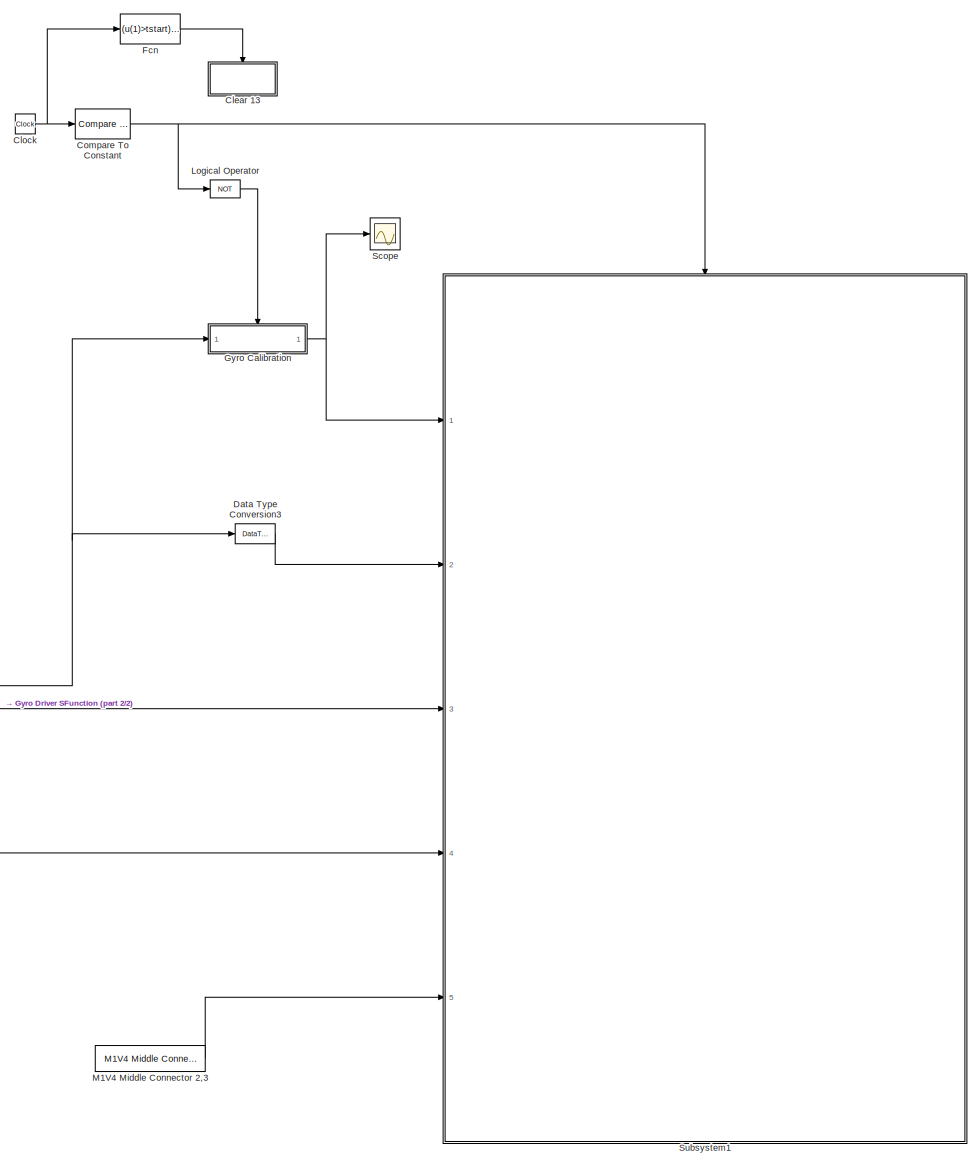
[diagram: root canvas - part 1/2, center side, full height]
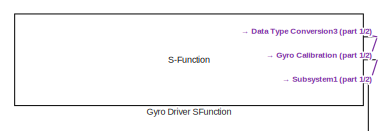
[diagram: root canvas - part 2/2, middle left region]
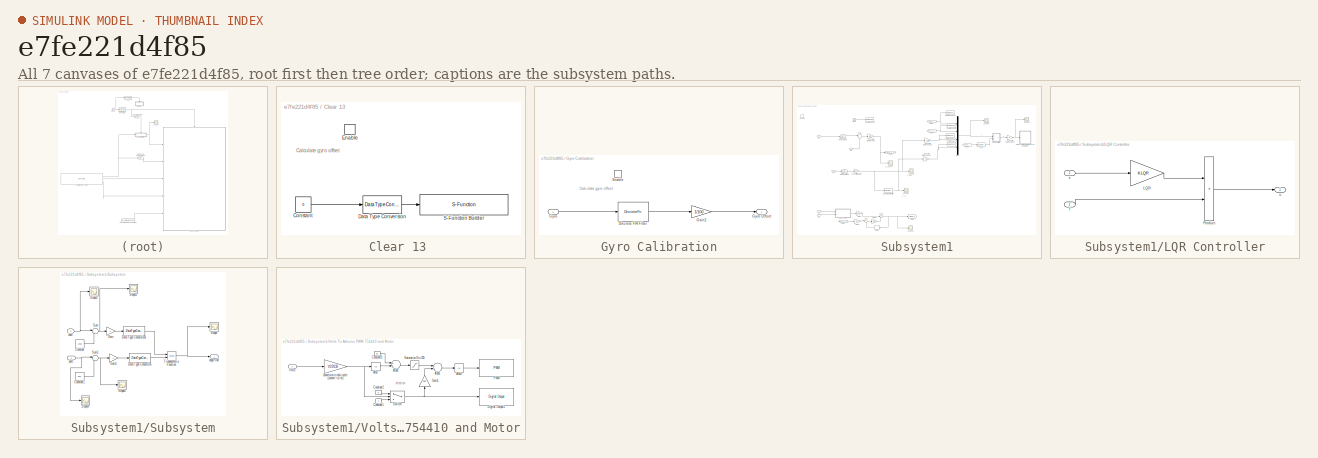
[diagram: thumbnail index - all 7 canvases of the model, root first then tree order]
MODEL slx_e7fe221d4f85
KIND model
CONFIG AbsTol = auto
CONFIG EnableMultiTasking = on
CONFIG FixedStep = TS
CONFIG MaxStep = auto
CONFIG MinStep = auto
CONFIG RelTol = 1e-3
CONFIG SampleTimeConstraint = Unconstrained
CONFIG Solver = FixedStepDiscrete
CONFIG SolverName = FixedStepDiscrete
CONFIG StartTime = 0.0
CONFIG StopTime = inf
BLOCK [SubSystem] Clear 13 
  Ports = [0, 0, 1]
  RequestExecContextInheritance = off
  TreatAsAtomicUnit = on
BLOCK [Constant] Clear 13 /Constant
  Value = 0
BLOCK [DataTypeConversion] Clear 13 /Data Type Conversion
  OutDataTypeStr = boolean
  RndMeth = Floor
  SaturateOnIntegerOverflow = off
BLOCK [EnablePort] Clear 13 /Enable
  Ports = []
BLOCK [S-Function] Clear 13 /S-Function Builder
  CopyFcn = set_param(gcbh,'LinkStatus','none')
  EnableBusSupport = off
  FunctionName = sfcn_Digital_Out
  InitFcn = try, set_param(gcb,'FunctionName','sfcn_Digital_Out'), end
  OpenFcn = sfunctionwizard(gcbh)
  Parameters = uint8(13)
  Ports = [1]
  PreSaveFcn = try, set_param(gcb,'FunctionName','sfcn_Digital_Out'), end
  SFcnIsStateOwnerBlock = off
  SFunctionDeploymentMode = off
  SFunctionModules = sfcn_Digital_Out_wrapper
BLOCK [Clock] Clock
BLOCK [Reference] Compare To Constant  REF=simulink/Logic and Bit
Operations/Compare
To Constant
  Ports = [1, 1]
  SourceBlock = simulink/Logic and Bit\nOperations/Compare\nTo Constant
  SourceProductBaseCode = SL
  SourceProductName = Simulink
  SourceType = Compare To Constant
BLOCK [DataTypeConversion] Data Type Conversion3
  OutDataTypeStr = double
  RndMeth = Floor
  SaturateOnIntegerOverflow = off
BLOCK [Fcn] Fcn
  Expr = (u(1)>tstart) && (u(1) < (tstart+.1) )
BLOCK [SubSystem] Gyro Calibration
  Ports = [1, 1, 1]
  RequestExecContextInheritance = off
  TreatAsAtomicUnit = on
BLOCK [DiscreteFir] Gyro Calibration/Discrete FIR Filter
  Coefficients = ones(1,100)
  InputPortMap = u0
  OutputPortMap = o0
  Ports = [1, 1]
BLOCK [EnablePort] Gyro Calibration/Enable
  Ports = []
BLOCK [Gain] Gyro Calibration/Gain2
  Gain = 1/100
  SaturateOnIntegerOverflow = off
BLOCK [Inport] Gyro Calibration/Gyro
  IconDisplay = Port number
BLOCK [Outport] Gyro Calibration/Gyro Offset
  IconDisplay = Port number
BLOCK [S-Function] Gyro Driver SFunction
  CopyFcn = set_param(gcbh,'LinkStatus','none')
  EnableBusSupport = off
  FunctionName = sf_MPU6050_Driver_GxAyz
  InitFcn = try, set_param(gcb,'FunctionName','sf_MPU6050_Driver_GxAyz'), end
  OpenFcn = sfunctionwizard(gcbh)
  Ports = [0, 3]
  PreSaveFcn = try, set_param(gcb,'FunctionName','sf_MPU6050_Driver_GxAyz'), end
  SFcnIsStateOwnerBlock = off
  SFunctionDeploymentMode = off
  SFunctionModules = sf_MPU6050_Driver_GxAyz_wrapper
BLOCK [Logic] Logical Operator
  AllPortsSameDT = off
  Operator = NOT
  OutDataTypeStr = boolean
  Ports = [1, 1]
BLOCK [Reference] M1V4 Middle Connector 2,3  REF=MinSegLibrary_M1V4/M1V4 Middle Connector 2,3
  Ports = [0, 1]
  SourceBlock = MinSegLibrary_M1V4/M1V4 Middle Connector 2,3
  SourceProductName = Rensselaer Arduino Support Package
  SourceType = Encoder_arduino
BLOCK [Scope] Scope
  Floating = off
  NumInputPorts = 1
  Ports = [1]
  ScopeSpecificationString = Simulink.scopes.TimeScopeBlockCfg('CurrentConfiguration', extmgr.ConfigurationSet(extmgr.Configuration('Core','General UI',true),extmgr.Configuration('Core','Source UI',true),extmgr.Configuration('Sources','WiredSimulink',true,'DataLoggingVariableName','ScopeData1'),extmgr.Configuration('Visuals','Time Domain',true,'SerializedDisplays',{struct('MinYLimReal','-20.09711','MaxYLimReal','180.87396','Y...<+1410ch>
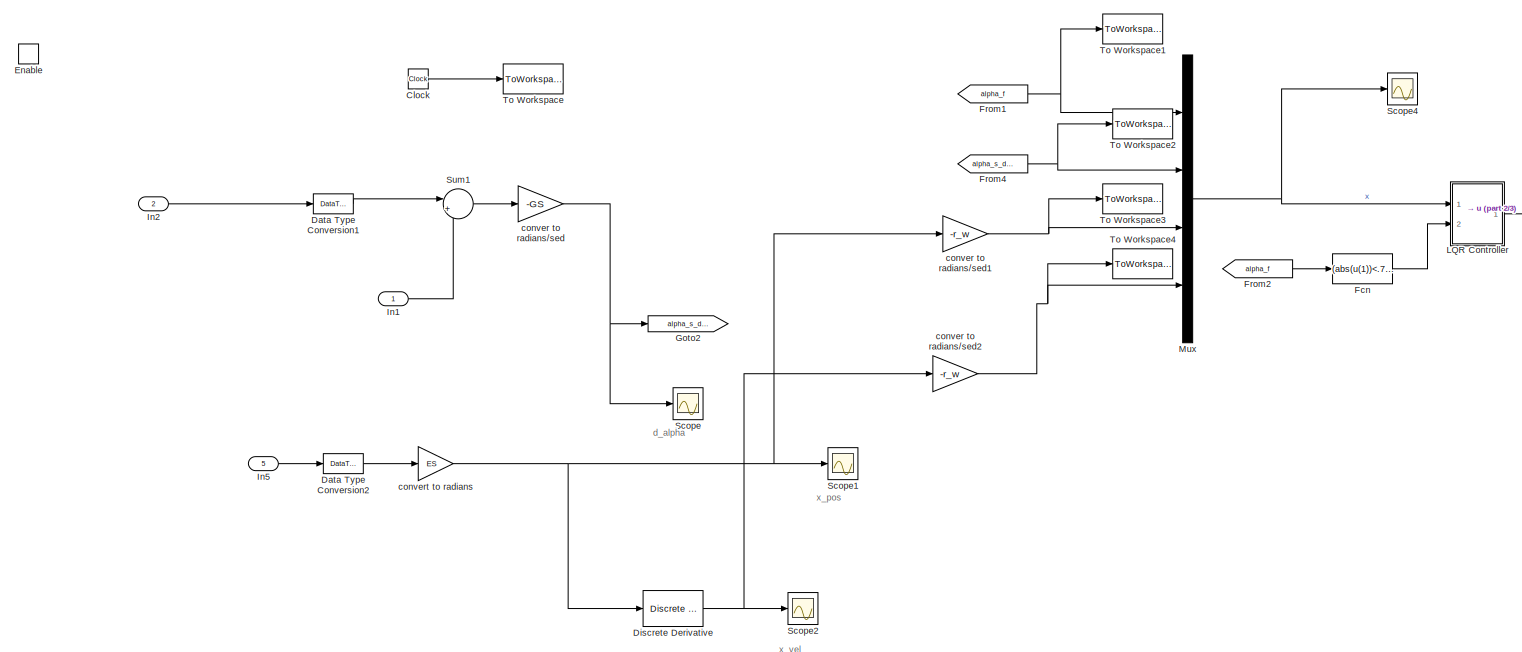
[diagram: Subsystem1 - part 1/3, full width, middle band]
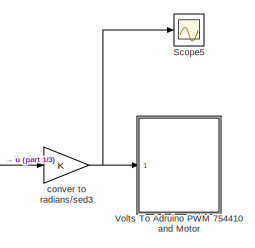
[diagram: Subsystem1 - part 2/3, top right region]
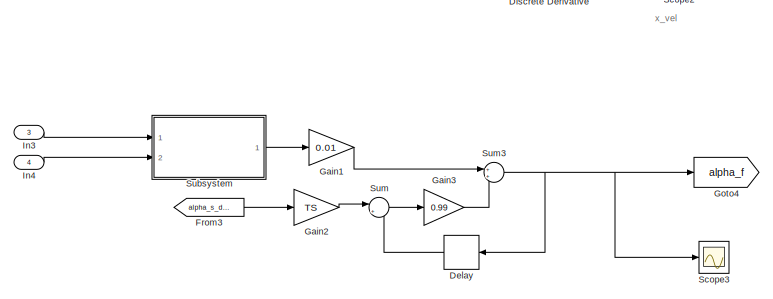
[diagram: Subsystem1 - part 3/3, bottom left region]
BLOCK [SubSystem] Subsystem1
  Ports = [5, 0, 1]
  RequestExecContextInheritance = off
BLOCK [Clock] Subsystem1/Clock
BLOCK [DataTypeConversion] Subsystem1/Data Type Conversion1
  OutDataTypeStr = double
  RndMeth = Floor
  SaturateOnIntegerOverflow = off
BLOCK [DataTypeConversion] Subsystem1/Data Type Conversion2
  OutDataTypeStr = double
  RndMeth = Floor
  SaturateOnIntegerOverflow = off
BLOCK [Delay] Subsystem1/Delay
  DelayLength = 1
  InitialCondition = 0
  InputPortMap = u0
  Ports = [1, 1]
BLOCK [Reference] Subsystem1/Discrete Derivative  REF=simulink/Discrete/Discrete Derivative
  Ports = [1, 1]
  SourceBlock = simulink/Discrete/Discrete Derivative
  SourceProductBaseCode = SL
  SourceProductName = Simulink
  SourceType = Discrete Derivative
BLOCK [EnablePort] Subsystem1/Enable
  Ports = []
BLOCK [Fcn] Subsystem1/Fcn
  Expr = (abs(u(1))<.75)
BLOCK [From] Subsystem1/From1
  GotoTag = alpha_f
BLOCK [From] Subsystem1/From2
  GotoTag = alpha_f
BLOCK [From] Subsystem1/From3
  GotoTag = alpha_s_dot
BLOCK [From] Subsystem1/From4
  GotoTag = alpha_s_dot
BLOCK [Gain] Subsystem1/Gain1
  Gain = 0.01
  OutDataTypeStr = Inherit: Inherit via internal rule
  ParamDataTypeStr = Inherit: Inherit via internal rule
  SaturateOnIntegerOverflow = off
BLOCK [Gain] Subsystem1/Gain2
  Gain = TS
  OutDataTypeStr = Inherit: Inherit via internal rule
  ParamDataTypeStr = Inherit: Inherit via internal rule
  SaturateOnIntegerOverflow = off
BLOCK [Gain] Subsystem1/Gain3
  Gain = 0.99
  OutDataTypeStr = Inherit: Inherit via internal rule
  ParamDataTypeStr = Inherit: Inherit via internal rule
  SaturateOnIntegerOverflow = off
BLOCK [Goto] Subsystem1/Goto2
  GotoTag = alpha_s_dot
BLOCK [Goto] Subsystem1/Goto4
  GotoTag = alpha_f
BLOCK [Inport] Subsystem1/In1
  IconDisplay = Port number
BLOCK [Inport] Subsystem1/In2
  IconDisplay = Port number
  Port = 2
BLOCK [Inport] Subsystem1/In3
  IconDisplay = Port number
  Port = 3
BLOCK [Inport] Subsystem1/In4
  IconDisplay = Port number
  Port = 4
BLOCK [Inport] Subsystem1/In5
  IconDisplay = Port number
  Port = 5
BLOCK [SubSystem] Subsystem1/LQR Controller
  Ports = [2, 1]
  RequestExecContextInheritance = off
BLOCK [Gain] Subsystem1/LQR Controller/LQR
  Gain = KLQR
  Multiplication = Matrix(K*u)
  OutDataTypeStr = Inherit: Inherit via internal rule
  ParamDataTypeStr = Inherit: Inherit via internal rule
  SaturateOnIntegerOverflow = off
BLOCK [Product] Subsystem1/LQR Controller/Product
  InputSameDT = off
  OutDataTypeStr = Inherit: Inherit via internal rule
  Ports = [2, 1]
  SaturateOnIntegerOverflow = off
BLOCK [Inport] Subsystem1/LQR Controller/f
  IconDisplay = Port number
  Port = 2
BLOCK [Outport] Subsystem1/LQR Controller/u
  IconDisplay = Port number
BLOCK [Inport] Subsystem1/LQR Controller/x
  IconDisplay = Port number
BLOCK [Mux] Subsystem1/Mux
  DisplayOption = bar
  Ports = [4, 1]
BLOCK [Scope] Subsystem1/Scope
  Floating = off
  NumInputPorts = 1
  Ports = [1]
  ScopeSpecificationString = Simulink.scopes.TimeScopeBlockCfg('CurrentConfiguration', extmgr.ConfigurationSet(extmgr.Configuration('Core','General UI',true),extmgr.Configuration('Core','Source UI',true),extmgr.Configuration('Sources','WiredSimulink',true,'DataLoggingVariableName','ScopeData1'),extmgr.Configuration('Visuals','Time Domain',true,'SerializedDisplays',{struct('MinYLimReal','-3.6061','MaxYLimReal','3.87921','YLabe...<+1403ch>
BLOCK [Scope] Subsystem1/Scope1
  Floating = off
  NumInputPorts = 1
  Ports = [1]
  ScopeSpecificationString = Simulink.scopes.TimeScopeBlockCfg('CurrentConfiguration', extmgr.ConfigurationSet(extmgr.Configuration('Core','General UI',true),extmgr.Configuration('Core','Source UI',true),extmgr.Configuration('Sources','WiredSimulink',true,'DataLoggingVariableName','ScopeData2'),extmgr.Configuration('Visuals','Time Domain',true,'SerializedDisplays',{struct('MinYLimReal','-0.87921','MaxYLimReal','7.91289','YLab...<+1432ch>
BLOCK [Scope] Subsystem1/Scope2
  Floating = off
  NumInputPorts = 1
  Ports = [1]
  ScopeSpecificationString = Simulink.scopes.TimeScopeBlockCfg('CurrentConfiguration', extmgr.ConfigurationSet(extmgr.Configuration('Core','General UI',true),extmgr.Configuration('Core','Source UI',true),extmgr.Configuration('Sources','WiredSimulink',true,'DataLoggingVariableName','ScopeData3'),extmgr.Configuration('Visuals','Time Domain',true,'SerializedDisplays',{struct('MinYLimReal','-1.30901','MaxYLimReal','11.78105','YLa...<+1440ch>
BLOCK [Scope] Subsystem1/Scope3
  Floating = off
  NumInputPorts = 1
  Ports = [1]
  ScopeSpecificationString = Simulink.scopes.TimeScopeBlockCfg('CurrentConfiguration', extmgr.ConfigurationSet(extmgr.Configuration('Core','General UI',true),extmgr.Configuration('Core','Source UI',true),extmgr.Configuration('Sources','WiredSimulink',true,'DataLoggingVariableName','ScopeData4'),extmgr.Configuration('Visuals','Time Domain',true,'SerializedDisplays',{struct('MinYLimReal','-1.67247','MaxYLimReal','0.17086','YLab...<+1441ch>
BLOCK [Scope] Subsystem1/Scope4
  Floating = off
  NumInputPorts = 1
  Ports = [1]
  ScopeSpecificationString = Simulink.scopes.TimeScopeBlockCfg('CurrentConfiguration', extmgr.ConfigurationSet(extmgr.Configuration('Core','General UI',true),extmgr.Configuration('Core','Source UI',true),extmgr.Configuration('Sources','WiredSimulink',true,'DataLoggingVariableName','ScopeData1'),extmgr.Configuration('Visuals','Time Domain',true,'SerializedDisplays',{struct('MinYLimReal','-5.43613','MaxYLimReal','5.47201','YLab...<+1453ch>
BLOCK [Scope] Subsystem1/Scope5
  Floating = off
  NumInputPorts = 1
  Ports = [1]
  ScopeSpecificationString = Simulink.scopes.TimeScopeBlockCfg('CurrentConfiguration', extmgr.ConfigurationSet(extmgr.Configuration('Core','General UI',true),extmgr.Configuration('Core','Source UI',true),extmgr.Configuration('Sources','WiredSimulink',true,'DataLoggingVariableName','ScopeData1'),extmgr.Configuration('Visuals','Time Domain',true,'SerializedDisplays',{struct('MinYLimReal','-35.40904','MaxYLimReal','318.68135','Y...<+1443ch>
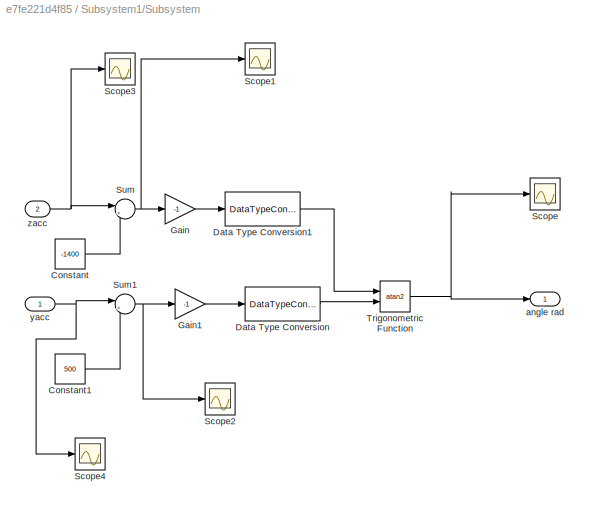
BLOCK [SubSystem] Subsystem1/Subsystem
  Ports = [2, 1]
  RequestExecContextInheritance = off
BLOCK [Constant] Subsystem1/Subsystem/Constant
  Value = -1400
BLOCK [Constant] Subsystem1/Subsystem/Constant1
  Value = 500
BLOCK [DataTypeConversion] Subsystem1/Subsystem/Data Type Conversion
  OutDataTypeStr = double
  RndMeth = Floor
  SaturateOnIntegerOverflow = off
BLOCK [DataTypeConversion] Subsystem1/Subsystem/Data Type Conversion1
  OutDataTypeStr = double
  RndMeth = Floor
  SaturateOnIntegerOverflow = off
BLOCK [Gain] Subsystem1/Subsystem/Gain
  Gain = -1
  OutDataTypeStr = Inherit: Inherit via internal rule
  ParamDataTypeStr = Inherit: Inherit via internal rule
  SaturateOnIntegerOverflow = off
BLOCK [Gain] Subsystem1/Subsystem/Gain1
  Gain = -1
  OutDataTypeStr = Inherit: Inherit via internal rule
  ParamDataTypeStr = Inherit: Inherit via internal rule
  SaturateOnIntegerOverflow = off
BLOCK [Scope] Subsystem1/Subsystem/Scope
  Floating = off
  NumInputPorts = 1
  Ports = [1]
  ScopeSpecificationString = Simulink.scopes.TimeScopeBlockCfg('CurrentConfiguration', extmgr.ConfigurationSet(extmgr.Configuration('Core','General UI',true),extmgr.Configuration('Core','Source UI',true),extmgr.Configuration('Sources','WiredSimulink',true),extmgr.Configuration('Visuals','Time Domain',true,'SerializedDisplays',{struct('MinYLimReal','-1.80877','MaxYLimReal','0.15576','YLabelReal','','MinYLimMag','0.00000','MaxY...<+1417ch>
BLOCK [Scope] Subsystem1/Subsystem/Scope1
  Floating = off
  NumInputPorts = 1
  Ports = [1]
  ScopeSpecificationString = Simulink.scopes.TimeScopeBlockCfg('CurrentConfiguration', extmgr.ConfigurationSet(extmgr.Configuration('Core','General UI',true),extmgr.Configuration('Core','Source UI',true),extmgr.Configuration('Sources','WiredSimulink',true,'DataLoggingVariableName','ScopeData3'),extmgr.Configuration('Visuals','Time Domain',true,'SerializedDisplays',{struct('MinYLimReal','16105.5','MaxYLimReal','16210.5','YLabe...<+1435ch>
BLOCK [Scope] Subsystem1/Subsystem/Scope2
  Floating = off
  NumInputPorts = 1
  Ports = [1]
  ScopeSpecificationString = Simulink.scopes.TimeScopeBlockCfg('CurrentConfiguration', extmgr.ConfigurationSet(extmgr.Configuration('Core','General UI',true),extmgr.Configuration('Core','Source UI',true),extmgr.Configuration('Sources','WiredSimulink',true,'DataLoggingVariableName','ScopeData2'),extmgr.Configuration('Visuals','Time Domain',true,'SerializedDisplays',{struct('MinYLimReal','-8022.25','MaxYLimReal','-6739.75','YLa...<+1425ch>
BLOCK [Scope] Subsystem1/Subsystem/Scope3
  Floating = off
  NumInputPorts = 1
  Ports = [1]
  ScopeSpecificationString = Simulink.scopes.TimeScopeBlockCfg('CurrentConfiguration', extmgr.ConfigurationSet(extmgr.Configuration('Core','General UI',true),extmgr.Configuration('Core','Source UI',true),extmgr.Configuration('Sources','WiredSimulink',true,'DataLoggingVariableName','ScopeData4'),extmgr.Configuration('Visuals','Time Domain',true,'SerializedDisplays',{struct('MinYLimReal','-7848.25','MaxYLimReal','3774.25','YLab...<+1442ch>
BLOCK [Scope] Subsystem1/Subsystem/Scope4
  Floating = off
  NumInputPorts = 1
  Ports = [1]
  ScopeSpecificationString = Simulink.scopes.TimeScopeBlockCfg('CurrentConfiguration', extmgr.ConfigurationSet(extmgr.Configuration('Core','General UI',true),extmgr.Configuration('Core','Source UI',true),extmgr.Configuration('Sources','WiredSimulink',true,'DataLoggingVariableName','ScopeData5'),extmgr.Configuration('Visuals','Time Domain',true,'SerializedDisplays',{struct('MinYLimReal','-7522.25','MaxYLimReal','-6239.75','YLa...<+1425ch>
BLOCK [Sum] Subsystem1/Subsystem/Sum
  IconShape = round
  InputSameDT = off
  Inputs = |+-
  OutDataTypeStr = Inherit: Inherit via internal rule
  Ports = [2, 1]
  SaturateOnIntegerOverflow = off
BLOCK [Sum] Subsystem1/Subsystem/Sum1
  IconShape = round
  InputSameDT = off
  Inputs = |+-
  OutDataTypeStr = Inherit: Inherit via internal rule
  Ports = [2, 1]
  SaturateOnIntegerOverflow = off
BLOCK [Trigonometry] Subsystem1/Subsystem/Trigonometric Function
  Operator = atan2
  Ports = [2, 1]
BLOCK [Outport] Subsystem1/Subsystem/angle rad
  IconDisplay = Port number
BLOCK [Inport] Subsystem1/Subsystem/yacc
  IconDisplay = Port number
BLOCK [Inport] Subsystem1/Subsystem/zacc
  IconDisplay = Port number
  Port = 2
BLOCK [Sum] Subsystem1/Sum
  IconShape = round
  InputSameDT = off
  Inputs = |++
  OutDataTypeStr = Inherit: Inherit via internal rule
  Ports = [2, 1]
  SaturateOnIntegerOverflow = off
BLOCK [Sum] Subsystem1/Sum1
  IconShape = round
  InputSameDT = off
  Inputs = |+-
  OutDataTypeStr = Inherit: Inherit via internal rule
  Ports = [2, 1]
  SaturateOnIntegerOverflow = off
BLOCK [Sum] Subsystem1/Sum3
  IconShape = round
  InputSameDT = off
  OutDataTypeStr = Inherit: Inherit via internal rule
  Ports = [2, 1]
  SaturateOnIntegerOverflow = off
BLOCK [ToWorkspace] Subsystem1/To Workspace
  FixptAsFi = on
  MaxDataPoints = inf
  Ports = [1]
  SampleTime = -1
  Save2DSignal = 3-D array (concatenate along third dimension)
  SaveFormat = Timeseries
  VariableName = t
BLOCK [ToWorkspace] Subsystem1/To Workspace1
  FixptAsFi = on
  MaxDataPoints = inf
  Ports = [1]
  SampleTime = -1
  Save2DSignal = 3-D array (concatenate along third dimension)
  VariableName = alpha
BLOCK [ToWorkspace] Subsystem1/To Workspace2
  FixptAsFi = on
  MaxDataPoints = inf
  Ports = [1]
  SampleTime = -1
  Save2DSignal = 3-D array (concatenate along third dimension)
  VariableName = alpha_dot
BLOCK [ToWorkspace] Subsystem1/To Workspace3
  FixptAsFi = on
  MaxDataPoints = inf
  Ports = [1]
  SampleTime = -1
  Save2DSignal = 3-D array (concatenate along third dimension)
  VariableName = x
BLOCK [ToWorkspace] Subsystem1/To Workspace4
  FixptAsFi = on
  MaxDataPoints = inf
  Ports = [1]
  SampleTime = -1
  Save2DSignal = 3-D array (concatenate along third dimension)
  VariableName = x_dot
BLOCK [SubSystem] Subsystem1/Volts To Adruino PWM 754410 and Motor
  Ports = [1]
  RequestExecContextInheritance = off
BLOCK [Abs] Subsystem1/Volts To Adruino PWM 754410 and Motor/Abs
  SaturateOnIntegerOverflow = off
BLOCK [Abs] Subsystem1/Volts To Adruino PWM 754410 and Motor/Abs3
  SaturateOnIntegerOverflow = off
BLOCK [Sum] Subsystem1/Volts To Adruino PWM 754410 and Motor/Add1
  InputSameDT = off
  Inputs = -+
  OutDataTypeStr = Inherit: Inherit via internal rule
  Ports = [2, 1]
  SaturateOnIntegerOverflow = off
BLOCK [Sum] Subsystem1/Volts To Adruino PWM 754410 and Motor/Add2
  InputSameDT = off
  OutDataTypeStr = Inherit: Inherit via internal rule
  Ports = [2, 1]
  SaturateOnIntegerOverflow = off
BLOCK [Constant] Subsystem1/Volts To Adruino PWM 754410 and Motor/Constant1
BLOCK [Constant] Subsystem1/Volts To Adruino PWM 754410 and Motor/Constant2
  Value = 0
BLOCK [Constant] Subsystem1/Volts To Adruino PWM 754410 and Motor/Constant3
  Value = 10
BLOCK [Reference] Subsystem1/Volts To Adruino PWM 754410 and Motor/Digital Output1  REF=arduinolib/Digital Output
  Ports = [1]
  SourceBlock = arduinolib/Digital Output
  SourceProductBaseCode = ARDUINO
  SourceProductName = Simulink Support Package for Arduino Hardware
  SourceType = Arduino Digital Output
BLOCK [Gain] Subsystem1/Volts To Adruino PWM 754410 and Motor/Gain1
  Gain = 255
  OutDataTypeStr = Inherit: Inherit via internal rule
  ParamDataTypeStr = Inherit: Inherit via internal rule
  SaturateOnIntegerOverflow = off
BLOCK [Reference] Subsystem1/Volts To Adruino PWM 754410 and Motor/PWM  REF=arduinolib/PWM
  Ports = [1]
  SourceBlock = arduinolib/PWM
  SourceProductBaseCode = ARDUINO
  SourceProductName = Simulink Support Package for Arduino Hardware
  SourceType = Arduino PWM
BLOCK [Saturate] Subsystem1/Volts To Adruino PWM 754410 and Motor/Saturation 0 to 255
  InputPortMap = u0
  LowerLimit = 0
  Ports = [1, 1]
  UpperLimit = 255
BLOCK [Switch] Subsystem1/Volts To Adruino PWM 754410 and Motor/Switch
  InputSameDT = off
  SaturateOnIntegerOverflow = off
BLOCK [Inport] Subsystem1/Volts To Adruino PWM 754410 and Motor/Volts
  IconDisplay = Port number
BLOCK [Gain] Subsystem1/Volts To Adruino PWM 754410 and Motor/conversion to duty cycle (convert to int)
  Gain = V2DCB
  OutDataTypeStr = int16
  ParamDataTypeStr = Inherit: Inherit via internal rule
  SaturateOnIntegerOverflow = off
BLOCK [Gain] Subsystem1/conver to radians//sed
  Gain = -GS
  OutDataTypeStr = Inherit: Inherit via internal rule
  ParamDataTypeStr = Inherit: Inherit via internal rule
  SaturateOnIntegerOverflow = off
BLOCK [Gain] Subsystem1/conver to radians//sed1
  Gain = -r_w
  OutDataTypeStr = Inherit: Inherit via internal rule
  ParamDataTypeStr = Inherit: Inherit via internal rule
  SaturateOnIntegerOverflow = off
BLOCK [Gain] Subsystem1/conver to radians//sed2
  Gain = -r_w
  OutDataTypeStr = Inherit: Inherit via internal rule
  ParamDataTypeStr = Inherit: Inherit via internal rule
  SaturateOnIntegerOverflow = off
BLOCK [Gain] Subsystem1/conver to radians//sed3
  OutDataTypeStr = Inherit: Inherit via internal rule
  ParamDataTypeStr = Inherit: Inherit via internal rule
  SaturateOnIntegerOverflow = off
BLOCK [Gain] Subsystem1/convert to radians
  Gain = ES
  OutDataTypeStr = double
  ParamDataTypeStr = Inherit: Inherit via internal rule
  SaturateOnIntegerOverflow = off
ANNOTATION Clear 13 : Calculate gyro offset
ANNOTATION Gyro Calibration: Calculate gyro offset
ANNOTATION Subsystem1: d_alpha
ANNOTATION Subsystem1: x_pos
ANNOTATION Subsystem1: x_vel
ANNOTATION Subsystem1/Volts To Adruino PWM 754410 and Motor: direction
LINE Clear 13 /Constant:1 -> Clear 13 /Data Type Conversion:1
LINE Clear 13 /Data Type Conversion:1 -> Clear 13 /S-Function Builder:1
NET Clock:1 -> Compare To Constant:1, Fcn:1
NET Compare To Constant:1 -> Logical Operator:1, Subsystem1:enable
LINE Data Type Conversion3:1 -> Subsystem1:2
LINE Fcn:1 -> Clear 13 :enable
LINE Gyro Calibration/Discrete FIR Filter:1 -> Gyro Calibration/Gain2:1
LINE Gyro Calibration/Gain2:1 -> Gyro Calibration/Gyro Offset:1
LINE Gyro Calibration/Gyro:1 -> Gyro Calibration/Discrete FIR Filter:1
NET Gyro Calibration:1 -> Scope:1, Subsystem1:1
NET Gyro Driver SFunction:1 -> Data Type Conversion3:1, Gyro Calibration:1
LINE Gyro Driver SFunction:2 -> Subsystem1:3
LINE Gyro Driver SFunction:3 -> Subsystem1:4
LINE Logical Operator:1 -> Gyro Calibration:enable
LINE M1V4 Middle Connector 2,3:1 -> Subsystem1:5
LINE Subsystem1/Clock:1 -> Subsystem1/To Workspace:1
LINE Subsystem1/Data Type Conversion1:1 -> Subsystem1/Sum1:1
LINE Subsystem1/Data Type Conversion2:1 -> Subsystem1/convert to radians:1
LINE Subsystem1/Delay:1 -> Subsystem1/Sum:2
NET Subsystem1/Discrete Derivative:1 -> Subsystem1/Scope2:1, Subsystem1/conver to radians//sed2:1
LINE Subsystem1/Fcn:1 -> Subsystem1/LQR Controller:2
NET Subsystem1/From1:1 -> Subsystem1/Mux:1, Subsystem1/To Workspace1:1
LINE Subsystem1/From2:1 -> Subsystem1/Fcn:1
LINE Subsystem1/From3:1 -> Subsystem1/Gain2:1
NET Subsystem1/From4:1 -> Subsystem1/Mux:2, Subsystem1/To Workspace2:1
LINE Subsystem1/Gain1:1 -> Subsystem1/Sum3:1
LINE Subsystem1/Gain2:1 -> Subsystem1/Sum:1
LINE Subsystem1/Gain3:1 -> Subsystem1/Sum3:2
LINE Subsystem1/In1:1 -> Subsystem1/Sum1:2
LINE Subsystem1/In2:1 -> Subsystem1/Data Type Conversion1:1
LINE Subsystem1/In3:1 -> Subsystem1/Subsystem:1
LINE Subsystem1/In4:1 -> Subsystem1/Subsystem:2
LINE Subsystem1/In5:1 -> Subsystem1/Data Type Conversion2:1
LINE Subsystem1/LQR Controller/LQR:1 -> Subsystem1/LQR Controller/Product:1
LINE Subsystem1/LQR Controller/Product:1 -> Subsystem1/LQR Controller/u:1
LINE Subsystem1/LQR Controller/f:1 -> Subsystem1/LQR Controller/Product:2
LINE Subsystem1/LQR Controller/x:1 -> Subsystem1/LQR Controller/LQR:1
LINE Subsystem1/LQR Controller:1 -> Subsystem1/conver to radians//sed3:1
NET Subsystem1/Mux:1 -> Subsystem1/LQR Controller:1, Subsystem1/Scope4:1
LINE Subsystem1/Subsystem/Constant1:1 -> Subsystem1/Subsystem/Sum1:2
LINE Subsystem1/Subsystem/Constant:1 -> Subsystem1/Subsystem/Sum:2
LINE Subsystem1/Subsystem/Data Type Conversion1:1 -> Subsystem1/Subsystem/Trigonometric Function:1
LINE Subsystem1/Subsystem/Data Type Conversion:1 -> Subsystem1/Subsystem/Trigonometric Function:2
LINE Subsystem1/Subsystem/Gain1:1 -> Subsystem1/Subsystem/Data Type Conversion:1
LINE Subsystem1/Subsystem/Gain:1 -> Subsystem1/Subsystem/Data Type Conversion1:1
NET Subsystem1/Subsystem/Sum1:1 -> Subsystem1/Subsystem/Gain1:1, Subsystem1/Subsystem/Scope2:1
NET Subsystem1/Subsystem/Sum:1 -> Subsystem1/Subsystem/Gain:1, Subsystem1/Subsystem/Scope1:1
NET Subsystem1/Subsystem/Trigonometric Function:1 -> Subsystem1/Subsystem/Scope:1, Subsystem1/Subsystem/angle rad:1
NET Subsystem1/Subsystem/yacc:1 -> Subsystem1/Subsystem/Scope4:1, Subsystem1/Subsystem/Sum1:1
NET Subsystem1/Subsystem/zacc:1 -> Subsystem1/Subsystem/Scope3:1, Subsystem1/Subsystem/Sum:1
LINE Subsystem1/Subsystem:1 -> Subsystem1/Gain1:1
LINE Subsystem1/Sum1:1 -> Subsystem1/conver to radians//sed:1
NET Subsystem1/Sum3:1 -> Subsystem1/Delay:1, Subsystem1/Goto4:1, Subsystem1/Scope3:1
LINE Subsystem1/Sum:1 -> Subsystem1/Gain3:1
LINE Subsystem1/Volts To Adruino PWM 754410 and Motor/Abs3:1 -> Subsystem1/Volts To Adruino PWM 754410 and Motor/PWM:1
LINE Subsystem1/Volts To Adruino PWM 754410 and Motor/Abs:1 -> Subsystem1/Volts To Adruino PWM 754410 and Motor/Add2:2
LINE Subsystem1/Volts To Adruino PWM 754410 and Motor/Add1:1 -> Subsystem1/Volts To Adruino PWM 754410 and Motor/Abs3:1
LINE Subsystem1/Volts To Adruino PWM 754410 and Motor/Add2:1 -> Subsystem1/Volts To Adruino PWM 754410 and Motor/Saturation 0 to 255:1
LINE Subsystem1/Volts To Adruino PWM 754410 and Motor/Constant1:1 -> Subsystem1/Volts To Adruino PWM 754410 and Motor/Switch:3
LINE Subsystem1/Volts To Adruino PWM 754410 and Motor/Constant2:1 -> Subsystem1/Volts To Adruino PWM 754410 and Motor/Switch:1
LINE Subsystem1/Volts To Adruino PWM 754410 and Motor/Constant3:1 -> Subsystem1/Volts To Adruino PWM 754410 and Motor/Add2:1
LINE Subsystem1/Volts To Adruino PWM 754410 and Motor/Gain1:1 -> Subsystem1/Volts To Adruino PWM 754410 and Motor/Add1:2
LINE Subsystem1/Volts To Adruino PWM 754410 and Motor/Saturation 0 to 255:1 -> Subsystem1/Volts To Adruino PWM 754410 and Motor/Add1:1
NET Subsystem1/Volts To Adruino PWM 754410 and Motor/Switch:1 -> Subsystem1/Volts To Adruino PWM 754410 and Motor/Digital Output1:1, Subsystem1/Volts To Adruino PWM 754410 and Motor/Gain1:1
LINE Subsystem1/Volts To Adruino PWM 754410 and Motor/Volts:1 -> Subsystem1/Volts To Adruino PWM 754410 and Motor/conversion to duty cycle (convert to int):1
NET Subsystem1/Volts To Adruino PWM 754410 and Motor/conversion to duty cycle (convert to int):1 -> Subsystem1/Volts To Adruino PWM 754410 and Motor/Abs:1, Subsystem1/Volts To Adruino PWM 754410 and Motor/Switch:2
NET Subsystem1/conver to radians//sed1:1 -> Subsystem1/Mux:3, Subsystem1/To Workspace3:1
NET Subsystem1/conver to radians//sed2:1 -> Subsystem1/Mux:4, Subsystem1/To Workspace4:1
NET Subsystem1/conver to radians//sed3:1 -> Subsystem1/Scope5:1, Subsystem1/Volts To Adruino PWM 754410 and Motor:1
NET Subsystem1/conver to radians//sed:1 -> Subsystem1/Goto2:1, Subsystem1/Scope:1
NET Subsystem1/convert to radians:1 -> Subsystem1/Discrete Derivative:1, Subsystem1/Scope1:1, Subsystem1/conver to radians//sed1:1
note: NET lines group one-source signal fan-out (src -> all destinations, sorted); 1:1 wires keep LINE
